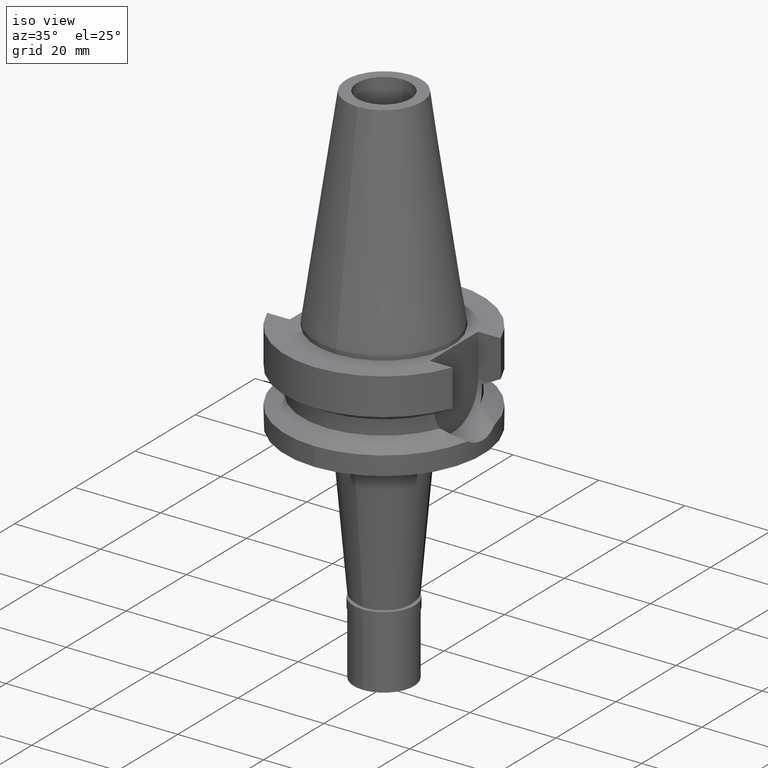
[diagram: clean part render]
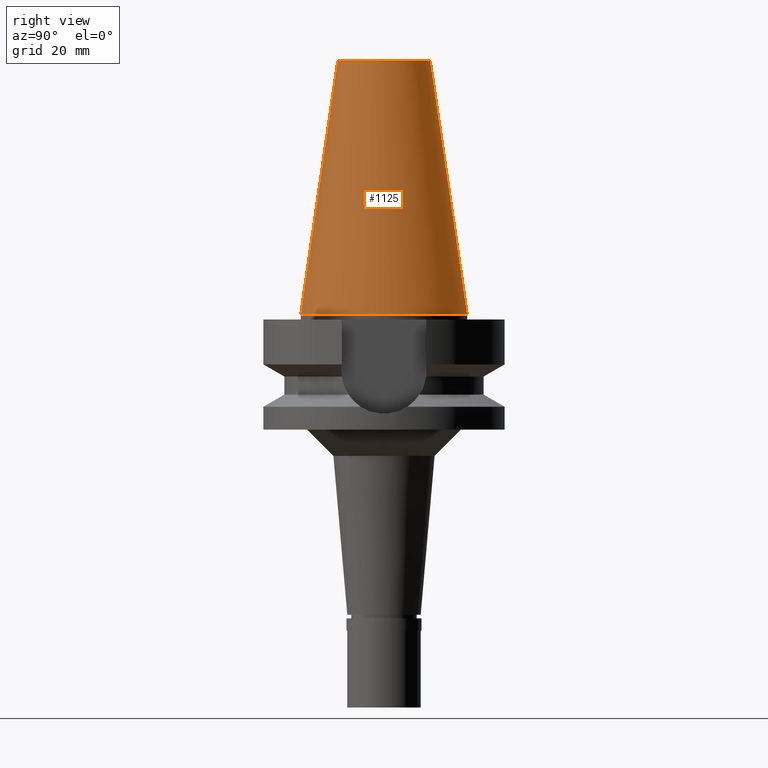
[diagram: tour spotlight — one face highlighted and labeled with its STEP entity id]
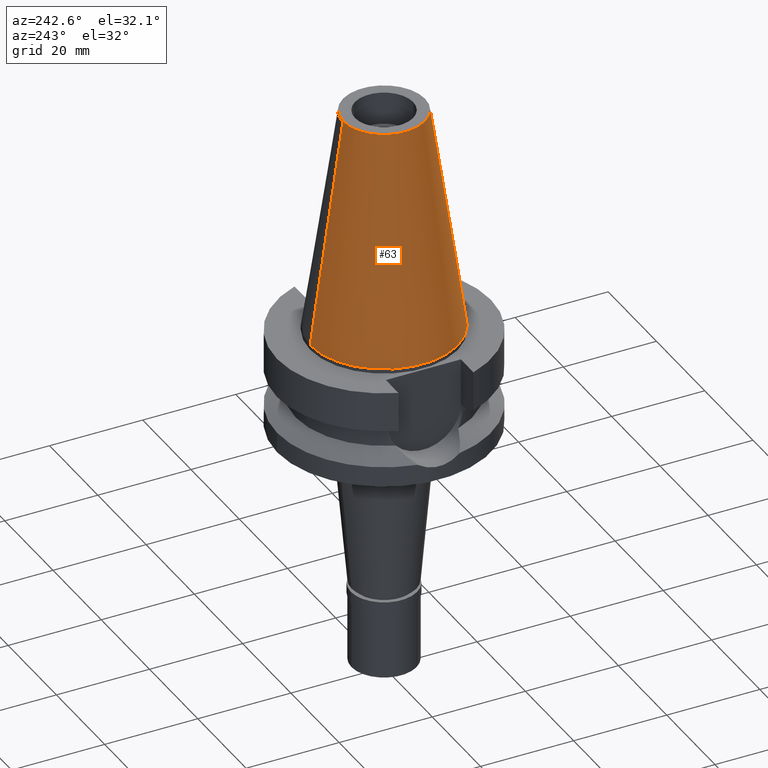
[diagram: tour spotlight — one face highlighted and labeled with its STEP entity id]
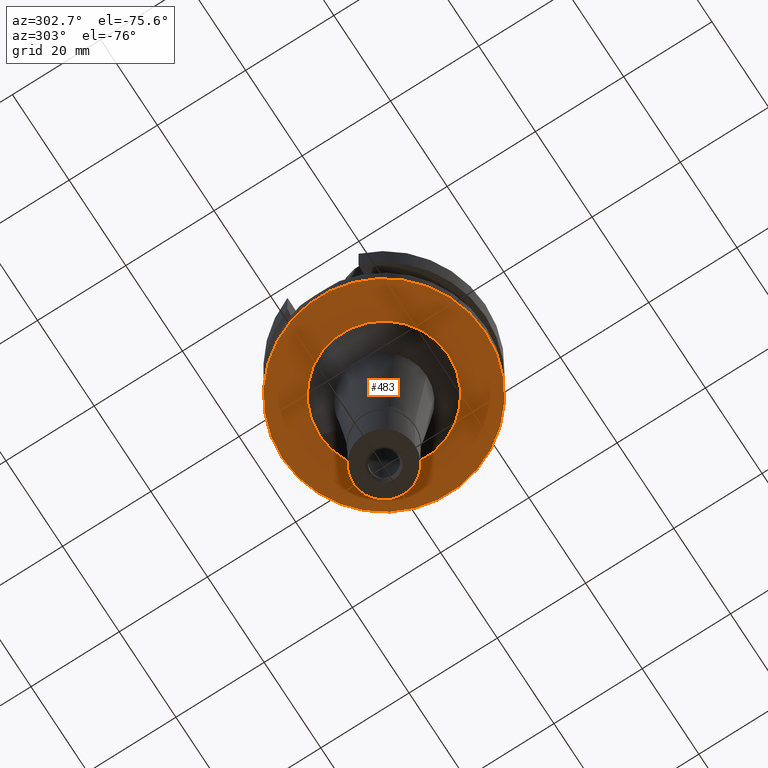
[diagram: tour spotlight — one face highlighted and labeled with its STEP entity id]
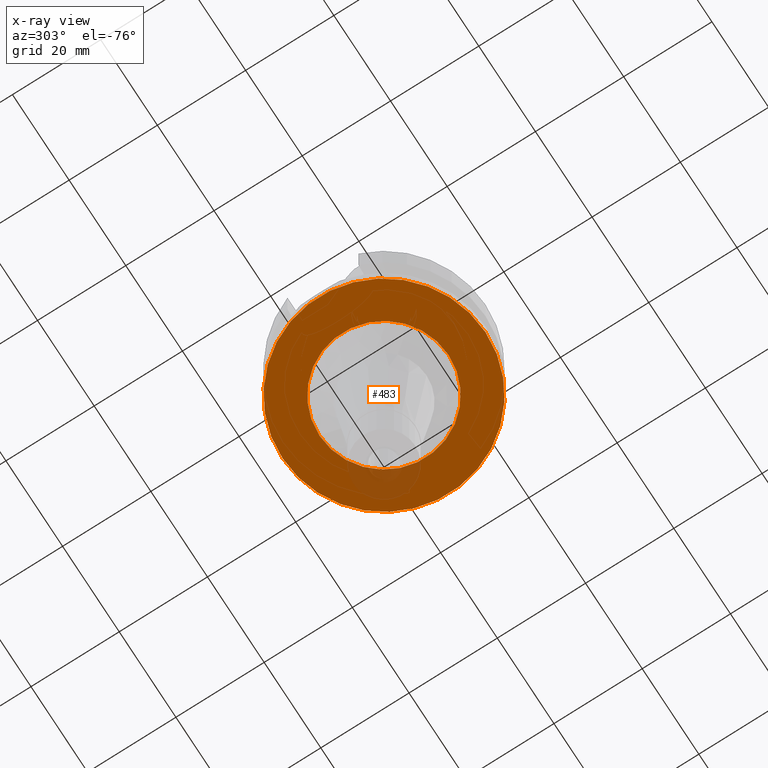
[diagram: x-ray of the same camera — body ghosted, this tour face saturated]
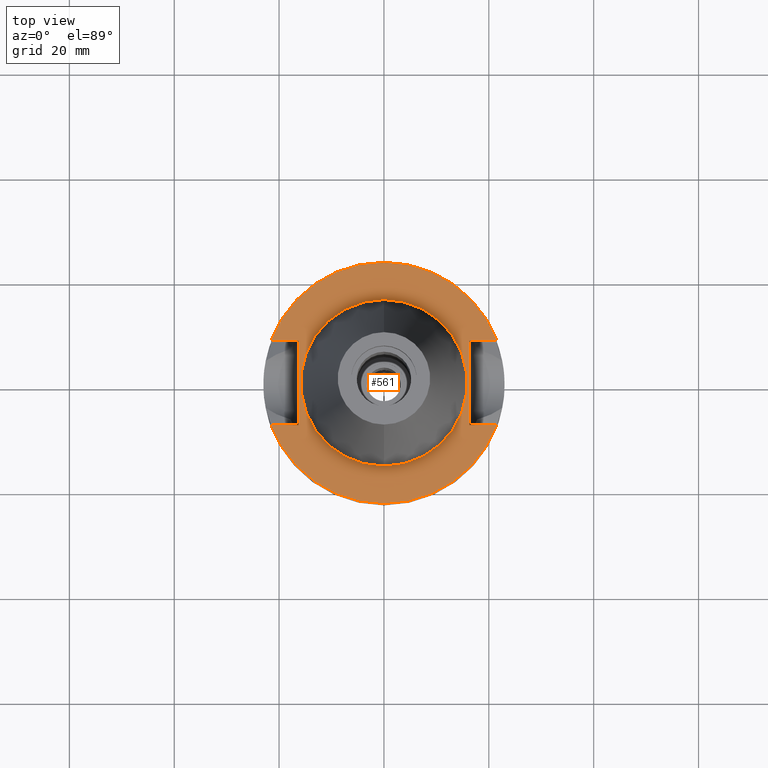
[diagram: tour spotlight — one face highlighted and labeled with its STEP entity id]
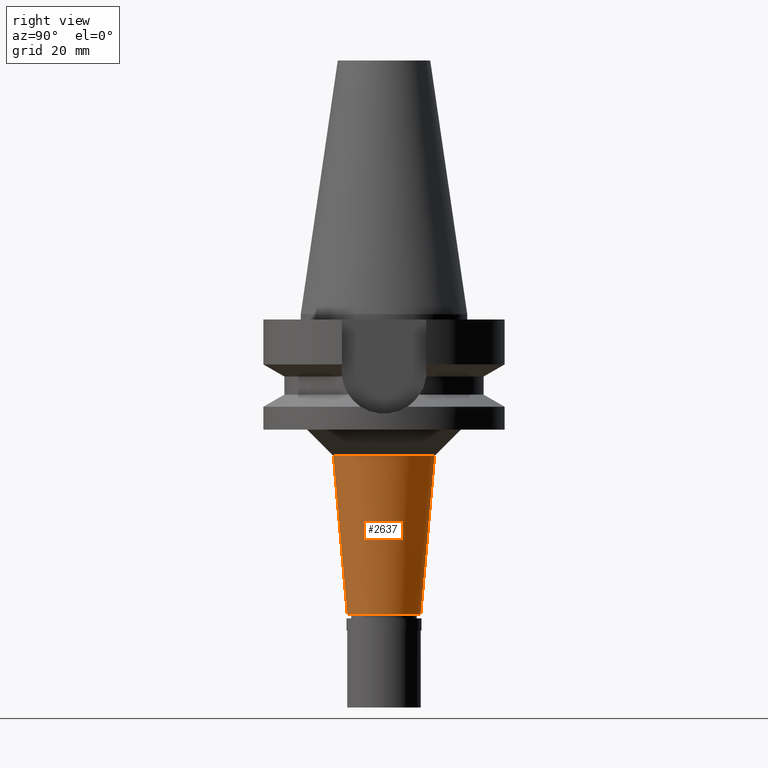
[diagram: tour spotlight — one face highlighted and labeled with its STEP entity id]
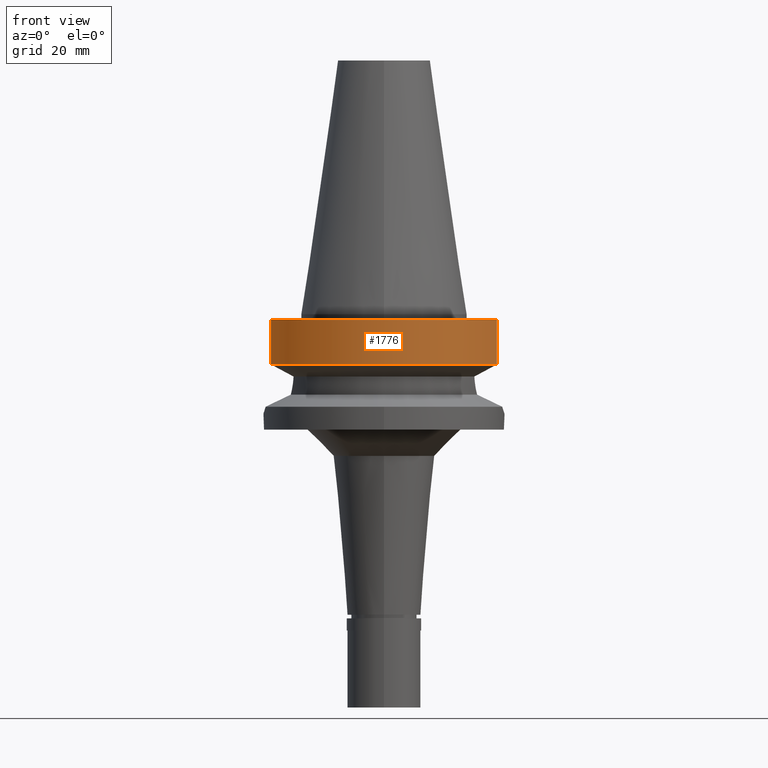
[diagram: tour spotlight — one face highlighted and labeled with its STEP entity id]
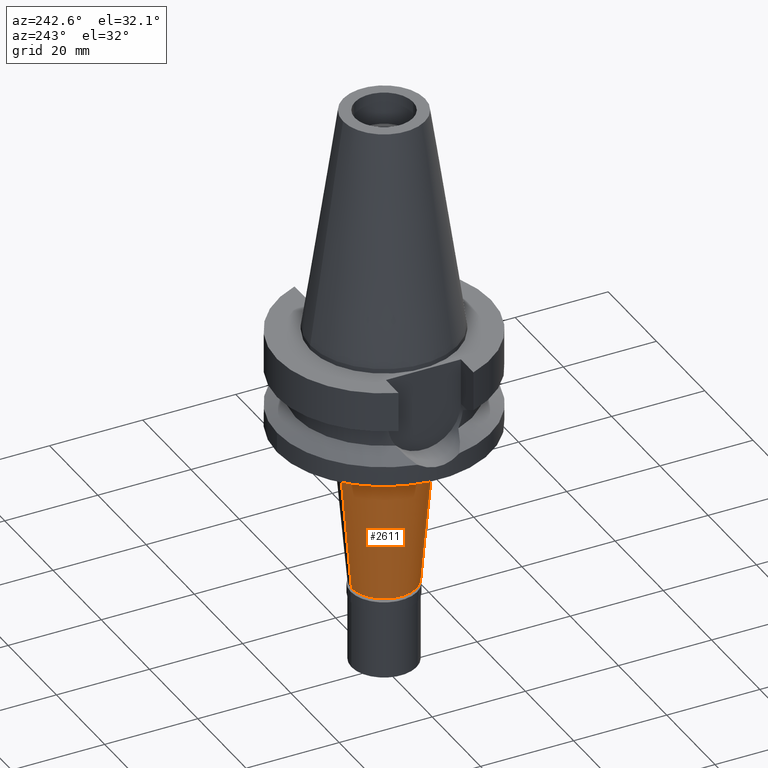
[diagram: tour spotlight — one face highlighted and labeled with its STEP entity id]
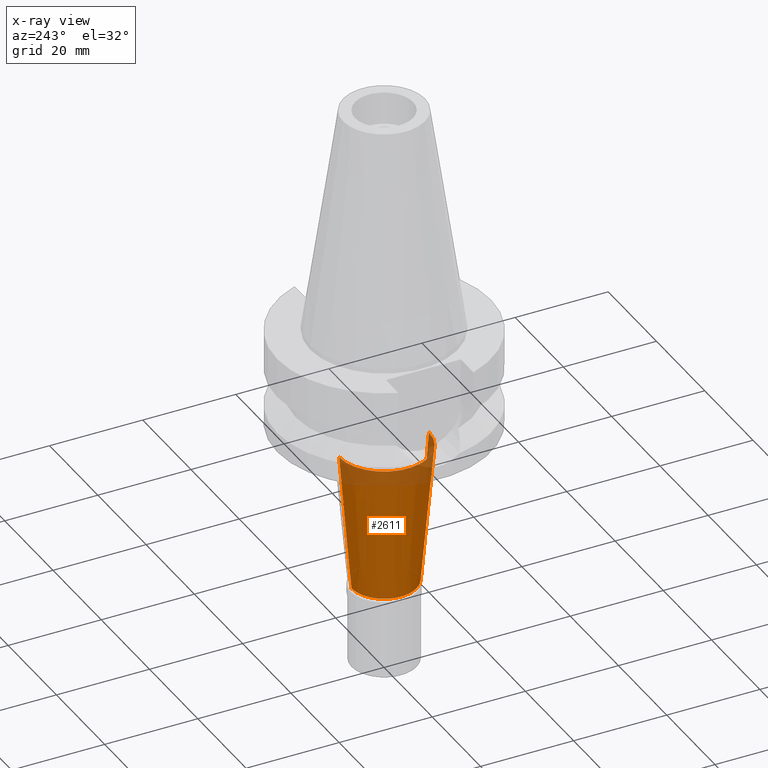
[diagram: x-ray of the same camera — body ghosted, this tour face saturated]
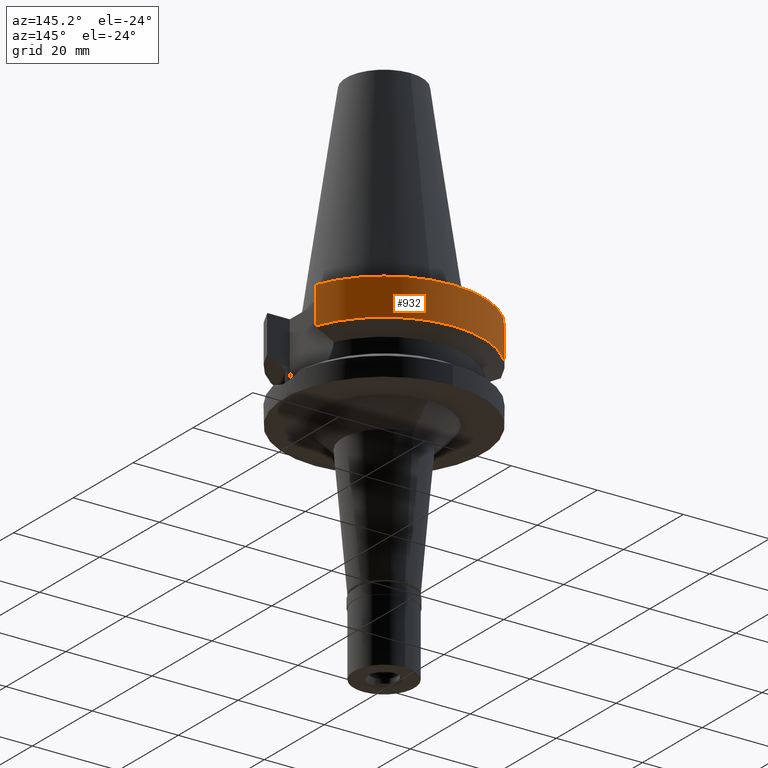
[diagram: tour spotlight — one face highlighted and labeled with its STEP entity id]
A machine part: a face-by-face anatomy tour. The part has 74 B-rep faces; the first image is the clean iso view, then the 8 largest visible faces are spotlighted one at a time (largest first), each with its STEP entity span.

Face 1 — right view, entity #1125. In plain terms, the highlighted conical surface has half-angle 8.297 deg.
Definition (entity closure, byte-faithful):
#152 = CARTESIAN_POINT ( 'NONE',  ( 0.0000000000000000000, 1.521011324540999938E-14, 48.39999999999999858 ) ) ;
#178 = AXIS2_PLACEMENT_3D ( 'NONE', #152, #419, #828 ) ;
#227 = EDGE_LOOP ( 'NONE', ( #533, #2521, #1038, #2292 ) ) ;
#302 = DIRECTION ( 'NONE',  ( 0.0000000000000000000, -0.1443043893539925626, -0.9895333461855498891 ) ) ;
#310 = EDGE_CURVE ( 'NONE', #1017, #2000, #962, .T. ) ;
#328 = DIRECTION ( 'NONE',  ( 0.0000000000000000000, 0.0000000000000000000, -1.000000000000000000 ) ) ;
#376 = VECTOR ( 'NONE', #1265, 1000.000000000000114 ) ;
#387 = VECTOR ( 'NONE', #302, 1000.000000000000114 ) ;
#419 = DIRECTION ( 'NONE',  ( 0.0000000000000000000, 0.0000000000000000000, -1.000000000000000000 ) ) ;
#467 = VERTEX_POINT ( 'NONE', #2934 ) ;
#479 = LINE ( 'NONE', #2092, #387 ) ;
#533 = ORIENTED_EDGE ( 'NONE', *, *, #1944, .T. ) ;
#807 = LINE ( 'NONE', #2623, #376 ) ;
#819 = CARTESIAN_POINT ( 'NONE',  ( 0.0000000000000000000, 1.521011324540999938E-14, -3.694822225953000089E-13 ) ) ;
#828 = DIRECTION ( 'NONE',  ( 0.0000000000000000000, 1.000000000000000000, 0.0000000000000000000 ) ) ;
#962 = CIRCLE ( 'NONE', #1948, 15.87500000000000000 ) ;
#1017 = VERTEX_POINT ( 'NONE', #2283 ) ;
#1038 = ORIENTED_EDGE ( 'NONE', *, *, #310, .F. ) ;
#1041 = CARTESIAN_POINT ( 'NONE',  ( 0.0000000000000000000, -15.87500000000000000, -1.598721155459999993E-13 ) ) ;
#1046 = CONICAL_SURFACE ( 'NONE', #2721, 12.34589586639000025, 0.1448099680379422438 ) ;
#1125 = ADVANCED_FACE ( 'NONE', ( #1498 ), #1046, .T. ) ;
#1265 = DIRECTION ( 'NONE',  ( 0.0000000000000000000, 0.1443043893539925626, -0.9895333461855498891 ) ) ;
#1273 = CIRCLE ( 'NONE', #178, 8.816791732783000768 ) ;
#1442 = CARTESIAN_POINT ( 'NONE',  ( 0.0000000000000000000, -8.816791732783000768, 48.39999999999999858 ) ) ;
#1498 = FACE_OUTER_BOUND ( 'NONE', #227, .T. ) ;
#1648 = EDGE_CURVE ( 'NONE', #467, #1017, #807, .T. ) ;
#1706 = DIRECTION ( 'NONE',  ( 0.0000000000000000000, 0.0000000000000000000, -1.000000000000000000 ) ) ;
#1744 = VERTEX_POINT ( 'NONE', #1442 ) ;
#1944 = EDGE_CURVE ( 'NONE', #467, #1744, #1273, .T. ) ;
#1948 = AXIS2_PLACEMENT_3D ( 'NONE', #819, #1706, #2505 ) ;
#1973 = CARTESIAN_POINT ( 'NONE',  ( 0.0000000000000000000, 1.521011324540999938E-14, 24.19999999999999929 ) ) ;
#2000 = VERTEX_POINT ( 'NONE', #1041 ) ;
#2092 = CARTESIAN_POINT ( 'NONE',  ( 0.0000000000000000000, -8.816791732783000768, 48.39999999999999858 ) ) ;
#2283 = CARTESIAN_POINT ( 'NONE',  ( 0.0000000000000000000, 15.87500000000000000, -1.598721155459999993E-13 ) ) ;
#2292 = ORIENTED_EDGE ( 'NONE', *, *, #1648, .F. ) ;
#2505 = DIRECTION ( 'NONE',  ( 0.0000000000000000000, 1.000000000000000000, 0.0000000000000000000 ) ) ;
#2521 = ORIENTED_EDGE ( 'NONE', *, *, #2781, .T. ) ;
#2623 = CARTESIAN_POINT ( 'NONE',  ( 0.0000000000000000000, 8.816791732783000768, 48.39999999999999858 ) ) ;
#2655 = DIRECTION ( 'NONE',  ( 0.0000000000000000000, -1.000000000000000000, 0.0000000000000000000 ) ) ;
#2721 = AXIS2_PLACEMENT_3D ( 'NONE', #1973, #328, #2655 ) ;
#2781 = EDGE_CURVE ( 'NONE', #1744, #2000, #479, .T. ) ;
#2934 = CARTESIAN_POINT ( 'NONE',  ( 0.0000000000000000000, 8.816791732783000768, 48.39999999999999858 ) ) ;

Face 2 — auxiliary view, entity #63. In plain terms, the highlighted conical surface has half-angle 8.297 deg.
Definition (entity closure, byte-faithful):
#26 = CARTESIAN_POINT ( 'NONE',  ( 0.0000000000000000000, 1.521011324540999938E-14, 24.19999999999999929 ) ) ;
#63 = ADVANCED_FACE ( 'NONE', ( #1616 ), #1352, .T. ) ;
#105 = CIRCLE ( 'NONE', #874, 8.816791732783000768 ) ;
#146 = EDGE_LOOP ( 'NONE', ( #867, #2079, #1000, #1801 ) ) ;
#302 = DIRECTION ( 'NONE',  ( 0.0000000000000000000, -0.1443043893539925626, -0.9895333461855498891 ) ) ;
#376 = VECTOR ( 'NONE', #1265, 1000.000000000000114 ) ;
#387 = VECTOR ( 'NONE', #302, 1000.000000000000114 ) ;
#467 = VERTEX_POINT ( 'NONE', #2934 ) ;
#479 = LINE ( 'NONE', #2092, #387 ) ;
#657 = AXIS2_PLACEMENT_3D ( 'NONE', #26, #746, #2598 ) ;
#746 = DIRECTION ( 'NONE',  ( 0.0000000000000000000, 0.0000000000000000000, -1.000000000000000000 ) ) ;
#749 = CARTESIAN_POINT ( 'NONE',  ( 0.0000000000000000000, 1.521011324540999938E-14, -3.694822225953000089E-13 ) ) ;
#807 = LINE ( 'NONE', #2623, #376 ) ;
#867 = ORIENTED_EDGE ( 'NONE', *, *, #1700, .F. ) ;
#874 = AXIS2_PLACEMENT_3D ( 'NONE', #2107, #1440, #2080 ) ;
#1000 = ORIENTED_EDGE ( 'NONE', *, *, #1551, .T. ) ;
#1017 = VERTEX_POINT ( 'NONE', #2283 ) ;
#1041 = CARTESIAN_POINT ( 'NONE',  ( 0.0000000000000000000, -15.87500000000000000, -1.598721155459999993E-13 ) ) ;
#1237 = DIRECTION ( 'NONE',  ( 0.0000000000000000000, -1.000000000000000000, 0.0000000000000000000 ) ) ;
#1265 = DIRECTION ( 'NONE',  ( 0.0000000000000000000, 0.1443043893539925626, -0.9895333461855498891 ) ) ;
#1352 = CONICAL_SURFACE ( 'NONE', #657, 12.34589586639000025, 0.1448099680379422438 ) ;
#1440 = DIRECTION ( 'NONE',  ( 0.0000000000000000000, 0.0000000000000000000, -1.000000000000000000 ) ) ;
#1442 = CARTESIAN_POINT ( 'NONE',  ( 0.0000000000000000000, -8.816791732783000768, 48.39999999999999858 ) ) ;
#1551 = EDGE_CURVE ( 'NONE', #1744, #467, #105, .T. ) ;
#1616 = FACE_OUTER_BOUND ( 'NONE', #146, .T. ) ;
#1648 = EDGE_CURVE ( 'NONE', #467, #1017, #807, .T. ) ;
#1700 = EDGE_CURVE ( 'NONE', #2000, #1017, #2269, .T. ) ;
#1744 = VERTEX_POINT ( 'NONE', #1442 ) ;
#1801 = ORIENTED_EDGE ( 'NONE', *, *, #1648, .T. ) ;
#1870 = DIRECTION ( 'NONE',  ( 0.0000000000000000000, 0.0000000000000000000, -1.000000000000000000 ) ) ;
#2000 = VERTEX_POINT ( 'NONE', #1041 ) ;
#2079 = ORIENTED_EDGE ( 'NONE', *, *, #2781, .F. ) ;
#2080 = DIRECTION ( 'NONE',  ( 0.0000000000000000000, -1.000000000000000000, 0.0000000000000000000 ) ) ;
#2092 = CARTESIAN_POINT ( 'NONE',  ( 0.0000000000000000000, -8.816791732783000768, 48.39999999999999858 ) ) ;
#2107 = CARTESIAN_POINT ( 'NONE',  ( 0.0000000000000000000, 1.521011324540999938E-14, 48.39999999999999858 ) ) ;
#2269 = CIRCLE ( 'NONE', #2656, 15.87500000000000000 ) ;
#2283 = CARTESIAN_POINT ( 'NONE',  ( 0.0000000000000000000, 15.87500000000000000, -1.598721155459999993E-13 ) ) ;
#2598 = DIRECTION ( 'NONE',  ( 0.0000000000000000000, -1.000000000000000000, 0.0000000000000000000 ) ) ;
#2623 = CARTESIAN_POINT ( 'NONE',  ( 0.0000000000000000000, 8.816791732783000768, 48.39999999999999858 ) ) ;
#2656 = AXIS2_PLACEMENT_3D ( 'NONE', #749, #1870, #1237 ) ;
#2781 = EDGE_CURVE ( 'NONE', #1744, #2000, #479, .T. ) ;
#2934 = CARTESIAN_POINT ( 'NONE',  ( 0.0000000000000000000, 8.816791732783000768, 48.39999999999999858 ) ) ;

Face 3 — auxiliary view, entity #483. An x-ray twin of the same camera follows (body ghosted, this face saturated) — the face is partly hidden behind the body. In plain terms, the highlighted planar face has unit normal (0, 0, -1).
Definition (entity closure, byte-faithful):
#234 = AXIS2_PLACEMENT_3D ( 'NONE', #850, #2259, #2474 ) ;
#276 = CARTESIAN_POINT ( 'NONE',  ( 0.0000000000000000000, 23.00000000000000000, -22.00000000000000000 ) ) ;
#424 = EDGE_CURVE ( 'NONE', #2414, #2358, #2777, .T. ) ;
#425 = CARTESIAN_POINT ( 'NONE',  ( 0.0000000000000000000, 0.0000000000000000000, -22.00000000000000000 ) ) ;
#462 = DIRECTION ( 'NONE',  ( 0.0000000000000000000, 0.0000000000000000000, 1.000000000000000000 ) ) ;
#483 = ADVANCED_FACE ( 'NONE', ( #861, #1750 ), #1538, .T. ) ;
#509 = DIRECTION ( 'NONE',  ( 0.0000000000000000000, 0.0000000000000000000, -1.000000000000000000 ) ) ;
#513 = AXIS2_PLACEMENT_3D ( 'NONE', #2492, #462, #1812 ) ;
#592 = EDGE_CURVE ( 'NONE', #1137, #1109, #2780, .T. ) ;
#659 = ORIENTED_EDGE ( 'NONE', *, *, #2816, .F. ) ;
#699 = DIRECTION ( 'NONE',  ( 0.0000000000000000000, 0.0000000000000000000, 1.000000000000000000 ) ) ;
#742 = CARTESIAN_POINT ( 'NONE',  ( 0.0000000000000000000, 0.0000000000000000000, -22.00000000000000000 ) ) ;
#756 = EDGE_LOOP ( 'NONE', ( #659, #1580 ) ) ;
#764 = DIRECTION ( 'NONE',  ( 0.0000000000000000000, 1.000000000000000000, 0.0000000000000000000 ) ) ;
#773 = CARTESIAN_POINT ( 'NONE',  ( 0.0000000000000000000, -23.00000000000000000, -22.00000000000000000 ) ) ;
#850 = CARTESIAN_POINT ( 'NONE',  ( 0.0000000000000000000, 0.0000000000000000000, -22.00000000000000000 ) ) ;
#861 = FACE_OUTER_BOUND ( 'NONE', #756, .T. ) ;
#1087 = CIRCLE ( 'NONE', #234, 14.65090650484000001 ) ;
#1109 = VERTEX_POINT ( 'NONE', #2315 ) ;
#1137 = VERTEX_POINT ( 'NONE', #2461 ) ;
#1172 = DIRECTION ( 'NONE',  ( 0.0000000000000000000, 1.000000000000000000, 0.0000000000000000000 ) ) ;
#1226 = ORIENTED_EDGE ( 'NONE', *, *, #592, .F. ) ;
#1319 = DIRECTION ( 'NONE',  ( 0.0000000000000000000, 0.0000000000000000000, -1.000000000000000000 ) ) ;
#1486 = AXIS2_PLACEMENT_3D ( 'NONE', #742, #509, #764 ) ;
#1538 = PLANE ( 'NONE',  #2197 ) ;
#1580 = ORIENTED_EDGE ( 'NONE', *, *, #424, .F. ) ;
#1750 = FACE_BOUND ( 'NONE', #2644, .T. ) ;
#1812 = DIRECTION ( 'NONE',  ( 0.0000000000000000000, -1.000000000000000000, 0.0000000000000000000 ) ) ;
#1960 = ORIENTED_EDGE ( 'NONE', *, *, #2670, .F. ) ;
#1992 = CIRCLE ( 'NONE', #2043, 23.00000000000000000 ) ;
#2043 = AXIS2_PLACEMENT_3D ( 'NONE', #2069, #699, #1172 ) ;
#2069 = CARTESIAN_POINT ( 'NONE',  ( 0.0000000000000000000, 1.890487263844000250E-14, -22.00000000000000000 ) ) ;
#2197 = AXIS2_PLACEMENT_3D ( 'NONE', #425, #1319, #2225 ) ;
#2225 = DIRECTION ( 'NONE',  ( 0.0000000000000000000, -1.000000000000000000, 0.0000000000000000000 ) ) ;
#2259 = DIRECTION ( 'NONE',  ( 0.0000000000000000000, 0.0000000000000000000, -1.000000000000000000 ) ) ;
#2315 = CARTESIAN_POINT ( 'NONE',  ( 0.0000000000000000000, -14.65090650484000001, -22.00000000000000000 ) ) ;
#2358 = VERTEX_POINT ( 'NONE', #276 ) ;
#2414 = VERTEX_POINT ( 'NONE', #773 ) ;
#2461 = CARTESIAN_POINT ( 'NONE',  ( 0.0000000000000000000, 14.65090650484000001, -22.00000000000000000 ) ) ;
#2474 = DIRECTION ( 'NONE',  ( 0.0000000000000000000, -1.000000000000000000, 0.0000000000000000000 ) ) ;
#2492 = CARTESIAN_POINT ( 'NONE',  ( 0.0000000000000000000, 1.890487263844000250E-14, -22.00000000000000000 ) ) ;
#2644 = EDGE_LOOP ( 'NONE', ( #1226, #1960 ) ) ;
#2670 = EDGE_CURVE ( 'NONE', #1109, #1137, #1087, .T. ) ;
#2777 = CIRCLE ( 'NONE', #513, 23.00000000000000000 ) ;
#2780 = CIRCLE ( 'NONE', #1486, 14.65090650484000001 ) ;
#2816 = EDGE_CURVE ( 'NONE', #2358, #2414, #1992, .T. ) ;

Face 4 — top view, entity #561. In plain terms, the highlighted planar face has unit normal (0, 0, -1).
Definition (entity closure, byte-faithful):
#107 = CARTESIAN_POINT ( 'NONE',  ( -16.29999999999999716, 8.050000000000000711, -1.000000000000000000 ) ) ;
#170 = DIRECTION ( 'NONE',  ( -1.000000000000000000, -9.313164748262000573E-14, 0.0000000000000000000 ) ) ;
#179 = EDGE_CURVE ( 'NONE', #2179, #2199, #2341, .T. ) ;
#197 = CIRCLE ( 'NONE', #2586, 23.00000000000000000 ) ;
#281 = CIRCLE ( 'NONE', #1179, 15.87500000000000000 ) ;
#290 = EDGE_CURVE ( 'NONE', #876, #2413, #2379, .T. ) ;
#349 = DIRECTION ( 'NONE',  ( 0.0000000000000000000, 1.000000000000000000, 0.0000000000000000000 ) ) ;
#365 = EDGE_CURVE ( 'NONE', #2591, #1863, #2030, .T. ) ;
#401 = EDGE_CURVE ( 'NONE', #876, #1154, #2694, .T. ) ;
#414 = EDGE_CURVE ( 'NONE', #1256, #2169, #461, .T. ) ;
#426 = DIRECTION ( 'NONE',  ( 1.000000000000000000, -9.347030801892000173E-14, 0.0000000000000000000 ) ) ;
#461 = CIRCLE ( 'NONE', #745, 15.87500000000000000 ) ;
#507 = DIRECTION ( 'NONE',  ( 0.0000000000000000000, -1.000000000000000000, 0.0000000000000000000 ) ) ;
#515 = DIRECTION ( 'NONE',  ( -1.000000000000000000, 9.347030801892000173E-14, 0.0000000000000000000 ) ) ;
#537 = FACE_BOUND ( 'NONE', #2938, .T. ) ;
#561 = ADVANCED_FACE ( 'NONE', ( #1878, #537 ), #2755, .F. ) ;
#601 = VECTOR ( 'NONE', #349, 1000.000000000000000 ) ;
#667 = CARTESIAN_POINT ( 'NONE',  ( 16.29999999999999716, 8.050000000000000711, -1.000000000000000000 ) ) ;
#673 = ORIENTED_EDGE ( 'NONE', *, *, #1011, .F. ) ;
#693 = ORIENTED_EDGE ( 'NONE', *, *, #290, .F. ) ;
#694 = VECTOR ( 'NONE', #1482, 1000.000000000000000 ) ;
#705 = ORIENTED_EDGE ( 'NONE', *, *, #365, .F. ) ;
#745 = AXIS2_PLACEMENT_3D ( 'NONE', #2680, #2948, #1585 ) ;
#798 = DIRECTION ( 'NONE',  ( 0.0000000000000000000, -1.000000000000000000, 0.0000000000000000000 ) ) ;
#876 = VERTEX_POINT ( 'NONE', #1520 ) ;
#880 = LINE ( 'NONE', #1099, #2166 ) ;
#987 = CARTESIAN_POINT ( 'NONE',  ( 0.0000000000000000000, 1.212400331155999925E-14, -1.000000000000000000 ) ) ;
#1011 = EDGE_CURVE ( 'NONE', #1127, #1154, #197, .T. ) ;
#1055 = CARTESIAN_POINT ( 'NONE',  ( -21.54524309446999908, -8.050000000000000711, -1.000000000000000000 ) ) ;
#1099 = CARTESIAN_POINT ( 'NONE',  ( 16.29999999999999716, -8.050000000000000711, -1.000000000000000000 ) ) ;
#1105 = VECTOR ( 'NONE', #515, 1000.000000000000000 ) ;
#1126 = CARTESIAN_POINT ( 'NONE',  ( 0.0000000000000000000, -15.87500000000000000, -0.9999999999999000799 ) ) ;
#1127 = VERTEX_POINT ( 'NONE', #1327 ) ;
#1154 = VERTEX_POINT ( 'NONE', #1055 ) ;
#1179 = AXIS2_PLACEMENT_3D ( 'NONE', #2805, #2355, #798 ) ;
#1201 = ORIENTED_EDGE ( 'NONE', *, *, #1665, .F. ) ;
#1256 = VERTEX_POINT ( 'NONE', #1908 ) ;
#1293 = CARTESIAN_POINT ( 'NONE',  ( 0.0000000000000000000, 1.890487263844000250E-14, -0.9999999999999000799 ) ) ;
#1327 = CARTESIAN_POINT ( 'NONE',  ( 21.54524309446999908, -8.050000000000000711, -1.000000000000000000 ) ) ;
#1342 = EDGE_CURVE ( 'NONE', #2413, #2179, #1572, .T. ) ;
#1420 = DIRECTION ( 'NONE',  ( 0.0000000000000000000, 0.0000000000000000000, -1.000000000000000000 ) ) ;
#1450 = EDGE_LOOP ( 'NONE', ( #2260, #673, #1201, #705, #2062, #2124, #2741, #693 ) ) ;
#1482 = DIRECTION ( 'NONE',  ( 1.000000000000000000, 9.380896855521999773E-14, 0.0000000000000000000 ) ) ;
#1507 = CARTESIAN_POINT ( 'NONE',  ( 16.29999999999999716, 8.050000000000000711, -1.000000000000000000 ) ) ;
#1520 = CARTESIAN_POINT ( 'NONE',  ( -16.29999999999999716, -8.050000000000000711, -1.000000000000000000 ) ) ;
#1525 = CARTESIAN_POINT ( 'NONE',  ( -16.29999999999999716, -8.050000000000000711, -1.000000000000000000 ) ) ;
#1572 = LINE ( 'NONE', #2275, #1105 ) ;
#1585 = DIRECTION ( 'NONE',  ( 0.0000000000000000000, 1.000000000000000000, 0.0000000000000000000 ) ) ;
#1595 = EDGE_CURVE ( 'NONE', #2591, #2199, #2424, .T. ) ;
#1596 = CARTESIAN_POINT ( 'NONE',  ( 0.0000000000000000000, 1.890487263844000250E-14, -0.9999999999999000799 ) ) ;
#1622 = CARTESIAN_POINT ( 'NONE',  ( 21.54524309446999908, 8.050000000000000711, -0.9999999999999000799 ) ) ;
#1625 = AXIS2_PLACEMENT_3D ( 'NONE', #987, #1420, #2552 ) ;
#1649 = CARTESIAN_POINT ( 'NONE',  ( 16.29999999999999716, -8.050000000000000711, -1.000000000000000000 ) ) ;
#1665 = EDGE_CURVE ( 'NONE', #1863, #1127, #880, .T. ) ;
#1692 = DIRECTION ( 'NONE',  ( 0.0000000000000000000, 0.0000000000000000000, -1.000000000000000000 ) ) ;
#1709 = ORIENTED_EDGE ( 'NONE', *, *, #414, .F. ) ;
#1755 = VECTOR ( 'NONE', #170, 1000.000000000000000 ) ;
#1760 = EDGE_CURVE ( 'NONE', #2169, #1256, #281, .T. ) ;
#1766 = DIRECTION ( 'NONE',  ( 0.0000000000000000000, -1.000000000000000000, 0.0000000000000000000 ) ) ;
#1806 = VECTOR ( 'NONE', #1766, 1000.000000000000000 ) ;
#1810 = DIRECTION ( 'NONE',  ( 0.0000000000000000000, 0.0000000000000000000, -1.000000000000000000 ) ) ;
#1863 = VERTEX_POINT ( 'NONE', #1649 ) ;
#1878 = FACE_OUTER_BOUND ( 'NONE', #1450, .T. ) ;
#1908 = CARTESIAN_POINT ( 'NONE',  ( 0.0000000000000000000, 15.87500000000000000, -0.9999999999999000799 ) ) ;
#2030 = LINE ( 'NONE', #667, #1806 ) ;
#2062 = ORIENTED_EDGE ( 'NONE', *, *, #1595, .T. ) ;
#2124 = ORIENTED_EDGE ( 'NONE', *, *, #179, .F. ) ;
#2166 = VECTOR ( 'NONE', #426, 1000.000000000000000 ) ;
#2169 = VERTEX_POINT ( 'NONE', #1126 ) ;
#2179 = VERTEX_POINT ( 'NONE', #2512 ) ;
#2199 = VERTEX_POINT ( 'NONE', #1622 ) ;
#2211 = CARTESIAN_POINT ( 'NONE',  ( -16.29999999999999716, -8.050000000000000711, -1.000000000000000000 ) ) ;
#2246 = CARTESIAN_POINT ( 'NONE',  ( 16.29999999999999716, 8.050000000000000711, -1.000000000000000000 ) ) ;
#2260 = ORIENTED_EDGE ( 'NONE', *, *, #401, .T. ) ;
#2275 = CARTESIAN_POINT ( 'NONE',  ( -16.29999999999999716, 8.050000000000000711, -1.000000000000000000 ) ) ;
#2341 = CIRCLE ( 'NONE', #2724, 23.00000000000000000 ) ;
#2355 = DIRECTION ( 'NONE',  ( 0.0000000000000000000, 0.0000000000000000000, 1.000000000000000000 ) ) ;
#2379 = LINE ( 'NONE', #1525, #601 ) ;
#2413 = VERTEX_POINT ( 'NONE', #107 ) ;
#2424 = LINE ( 'NONE', #1507, #694 ) ;
#2512 = CARTESIAN_POINT ( 'NONE',  ( -21.54524309446999908, 8.050000000000000711, -1.000000000000000000 ) ) ;
#2552 = DIRECTION ( 'NONE',  ( 0.0000000000000000000, -1.000000000000000000, 0.0000000000000000000 ) ) ;
#2586 = AXIS2_PLACEMENT_3D ( 'NONE', #1596, #1810, #507 ) ;
#2591 = VERTEX_POINT ( 'NONE', #2246 ) ;
#2680 = CARTESIAN_POINT ( 'NONE',  ( 0.0000000000000000000, 1.890487263844000250E-14, -0.9999999999999000799 ) ) ;
#2694 = LINE ( 'NONE', #2211, #1755 ) ;
#2724 = AXIS2_PLACEMENT_3D ( 'NONE', #1293, #1692, #2884 ) ;
#2731 = ORIENTED_EDGE ( 'NONE', *, *, #1760, .F. ) ;
#2741 = ORIENTED_EDGE ( 'NONE', *, *, #1342, .F. ) ;
#2755 = PLANE ( 'NONE',  #1625 ) ;
#2805 = CARTESIAN_POINT ( 'NONE',  ( 0.0000000000000000000, 1.890487263844000250E-14, -0.9999999999999000799 ) ) ;
#2884 = DIRECTION ( 'NONE',  ( 0.0000000000000000000, 1.000000000000000000, 0.0000000000000000000 ) ) ;
#2938 = EDGE_LOOP ( 'NONE', ( #1709, #2731 ) ) ;
#2948 = DIRECTION ( 'NONE',  ( 0.0000000000000000000, 0.0000000000000000000, 1.000000000000000000 ) ) ;

Face 5 — right view, entity #2637. In plain terms, the highlighted conical surface has half-angle 5 deg.
Definition (entity closure, byte-faithful):
#35 = CARTESIAN_POINT ( 'NONE',  ( 0.0000000000000000000, 0.0000000000000000000, -57.29999999999999716 ) ) ;
#94 = AXIS2_PLACEMENT_3D ( 'NONE', #35, #252, #493 ) ;
#113 = CARTESIAN_POINT ( 'NONE',  ( 0.0000000000000000000, -9.650906504837001521, -27.00000000000000000 ) ) ;
#125 = DIRECTION ( 'NONE',  ( 0.0000000000000000000, -0.08715574274770356011, -0.9961946980917415484 ) ) ;
#130 = EDGE_CURVE ( 'NONE', #1174, #1716, #159, .T. ) ;
#159 = LINE ( 'NONE', #113, #2783 ) ;
#220 = EDGE_CURVE ( 'NONE', #1499, #1779, #2422, .T. ) ;
#252 = DIRECTION ( 'NONE',  ( 0.0000000000000000000, 0.0000000000000000000, 1.000000000000000000 ) ) ;
#417 = CARTESIAN_POINT ( 'NONE',  ( 0.0000000000000000000, -9.650906504837001521, -27.00000000000000000 ) ) ;
#491 = DIRECTION ( 'NONE',  ( 0.0000000000000000000, -1.000000000000000000, 0.0000000000000000000 ) ) ;
#493 = DIRECTION ( 'NONE',  ( 0.0000000000000000000, -1.000000000000000000, 0.0000000000000000000 ) ) ;
#531 = CARTESIAN_POINT ( 'NONE',  ( 0.0000000000000000000, -7.000000000000000000, -57.29999999999999716 ) ) ;
#583 = DIRECTION ( 'NONE',  ( 0.0000000000000000000, 0.08715574274770356011, -0.9961946980917415484 ) ) ;
#624 = EDGE_CURVE ( 'NONE', #1174, #1499, #787, .T. ) ;
#669 = FACE_OUTER_BOUND ( 'NONE', #1262, .T. ) ;
#679 = AXIS2_PLACEMENT_3D ( 'NONE', #1131, #2458, #1768 ) ;
#787 = CIRCLE ( 'NONE', #1583, 9.650906504835999655 ) ;
#872 = VECTOR ( 'NONE', #125, 1000.000000000000000 ) ;
#1069 = ORIENTED_EDGE ( 'NONE', *, *, #2749, .T. ) ;
#1131 = CARTESIAN_POINT ( 'NONE',  ( 0.0000000000000000000, 0.0000000000000000000, -42.14999999999999858 ) ) ;
#1174 = VERTEX_POINT ( 'NONE', #417 ) ;
#1202 = CARTESIAN_POINT ( 'NONE',  ( 0.0000000000000000000, 0.0000000000000000000, -27.00000000000000000 ) ) ;
#1262 = EDGE_LOOP ( 'NONE', ( #1356, #2625, #1069, #2101 ) ) ;
#1356 = ORIENTED_EDGE ( 'NONE', *, *, #624, .F. ) ;
#1499 = VERTEX_POINT ( 'NONE', #1866 ) ;
#1583 = AXIS2_PLACEMENT_3D ( 'NONE', #1202, #1653, #491 ) ;
#1653 = DIRECTION ( 'NONE',  ( 0.0000000000000000000, 0.0000000000000000000, 1.000000000000000000 ) ) ;
#1716 = VERTEX_POINT ( 'NONE', #531 ) ;
#1768 = DIRECTION ( 'NONE',  ( 0.0000000000000000000, 1.000000000000000000, 0.0000000000000000000 ) ) ;
#1779 = VERTEX_POINT ( 'NONE', #1853 ) ;
#1853 = CARTESIAN_POINT ( 'NONE',  ( 0.0000000000000000000, 7.000000000000000000, -57.29999999999999716 ) ) ;
#1866 = CARTESIAN_POINT ( 'NONE',  ( 0.0000000000000000000, 9.650906504837001521, -27.00000000000000000 ) ) ;
#2101 = ORIENTED_EDGE ( 'NONE', *, *, #220, .F. ) ;
#2422 = LINE ( 'NONE', #2622, #872 ) ;
#2428 = CIRCLE ( 'NONE', #94, 7.000000000000000000 ) ;
#2458 = DIRECTION ( 'NONE',  ( 0.0000000000000000000, 0.0000000000000000000, 1.000000000000000000 ) ) ;
#2575 = CONICAL_SURFACE ( 'NONE', #679, 8.325453252417998939, 0.08726646259969973729 ) ;
#2622 = CARTESIAN_POINT ( 'NONE',  ( 0.0000000000000000000, 9.650906504837001521, -27.00000000000000000 ) ) ;
#2625 = ORIENTED_EDGE ( 'NONE', *, *, #130, .T. ) ;
#2637 = ADVANCED_FACE ( 'NONE', ( #669 ), #2575, .T. ) ;
#2749 = EDGE_CURVE ( 'NONE', #1716, #1779, #2428, .T. ) ;
#2783 = VECTOR ( 'NONE', #583, 1000.000000000000000 ) ;

Face 6 — front view, entity #1776. In plain terms, the highlighted cylindrical surface (partial cylindrical patch) has radius 23 mm, axis along (0, 0, -1).
Definition (entity closure, byte-faithful):
#24 = DIRECTION ( 'NONE',  ( 0.0000000000000000000, 0.0000000000000000000, 1.000000000000000000 ) ) ;
#197 = CIRCLE ( 'NONE', #2586, 23.00000000000000000 ) ;
#253 = ORIENTED_EDGE ( 'NONE', *, *, #1011, .T. ) ;
#313 = VECTOR ( 'NONE', #1894, 1000.000000000000114 ) ;
#480 = VERTEX_POINT ( 'NONE', #1077 ) ;
#507 = DIRECTION ( 'NONE',  ( 0.0000000000000000000, -1.000000000000000000, 0.0000000000000000000 ) ) ;
#546 = CARTESIAN_POINT ( 'NONE',  ( -21.54524325238000060, -8.049999577366000025, -9.567211146628999074 ) ) ;
#644 = EDGE_CURVE ( 'NONE', #1127, #480, #2799, .T. ) ;
#944 = LINE ( 'NONE', #1418, #2001 ) ;
#949 = CARTESIAN_POINT ( 'NONE',  ( 0.0000000000000000000, 1.093341284896999988E-14, -9.567208369710998639 ) ) ;
#954 = FACE_OUTER_BOUND ( 'NONE', #1056, .T. ) ;
#1011 = EDGE_CURVE ( 'NONE', #1127, #1154, #197, .T. ) ;
#1055 = CARTESIAN_POINT ( 'NONE',  ( -21.54524309446999908, -8.050000000000000711, -1.000000000000000000 ) ) ;
#1056 = EDGE_LOOP ( 'NONE', ( #2794, #1197, #1684, #253 ) ) ;
#1077 = CARTESIAN_POINT ( 'NONE',  ( 21.54524309446999908, -8.050000000002000888, -9.567208369710998639 ) ) ;
#1092 = EDGE_CURVE ( 'NONE', #2478, #1154, #944, .T. ) ;
#1127 = VERTEX_POINT ( 'NONE', #1327 ) ;
#1154 = VERTEX_POINT ( 'NONE', #1055 ) ;
#1170 = CARTESIAN_POINT ( 'NONE',  ( 21.54524309446999908, -8.050000000000000711, -1.000000000000000000 ) ) ;
#1197 = ORIENTED_EDGE ( 'NONE', *, *, #2742, .T. ) ;
#1327 = CARTESIAN_POINT ( 'NONE',  ( 21.54524309446999908, -8.050000000000000711, -1.000000000000000000 ) ) ;
#1418 = CARTESIAN_POINT ( 'NONE',  ( -21.54524325238000060, -8.049999577366000025, -9.567211146628999074 ) ) ;
#1505 = AXIS2_PLACEMENT_3D ( 'NONE', #2544, #1884, #1903 ) ;
#1596 = CARTESIAN_POINT ( 'NONE',  ( 0.0000000000000000000, 1.890487263844000250E-14, -0.9999999999999000799 ) ) ;
#1684 = ORIENTED_EDGE ( 'NONE', *, *, #644, .F. ) ;
#1776 = ADVANCED_FACE ( 'NONE', ( #954 ), #2083, .T. ) ;
#1810 = DIRECTION ( 'NONE',  ( 0.0000000000000000000, 0.0000000000000000000, -1.000000000000000000 ) ) ;
#1884 = DIRECTION ( 'NONE',  ( 0.0000000000000000000, 0.0000000000000000000, -1.000000000000000000 ) ) ;
#1894 = DIRECTION ( 'NONE',  ( -9.134800745262689569E-08, -2.444862503416914398E-07, -0.9999999999999659162 ) ) ;
#1896 = AXIS2_PLACEMENT_3D ( 'NONE', #949, #24, #2519 ) ;
#1903 = DIRECTION ( 'NONE',  ( 0.0000000000000000000, -1.000000000000000000, 0.0000000000000000000 ) ) ;
#2001 = VECTOR ( 'NONE', #2302, 1000.000000000000114 ) ;
#2083 = CYLINDRICAL_SURFACE ( 'NONE', #1505, 23.00000000000000000 ) ;
#2302 = DIRECTION ( 'NONE',  ( 1.843191671230997693E-08, -4.933165888406983159E-08, 0.9999999999999985567 ) ) ;
#2478 = VERTEX_POINT ( 'NONE', #546 ) ;
#2519 = DIRECTION ( 'NONE',  ( 0.0000000000000000000, -1.000000000000000000, 0.0000000000000000000 ) ) ;
#2544 = CARTESIAN_POINT ( 'NONE',  ( 0.0000000000000000000, 1.890487263844000250E-14, 54.37000000000000455 ) ) ;
#2586 = AXIS2_PLACEMENT_3D ( 'NONE', #1596, #1810, #507 ) ;
#2667 = CIRCLE ( 'NONE', #1896, 23.00000000000000000 ) ;
#2742 = EDGE_CURVE ( 'NONE', #2478, #480, #2667, .T. ) ;
#2794 = ORIENTED_EDGE ( 'NONE', *, *, #1092, .F. ) ;
#2799 = LINE ( 'NONE', #1170, #313 ) ;

Face 7 — auxiliary view, entity #2611. An x-ray twin of the same camera follows (body ghosted, this face saturated) — the face is partly hidden behind the body. In plain terms, the highlighted conical surface has half-angle 5 deg.
Definition (entity closure, byte-faithful):
#113 = CARTESIAN_POINT ( 'NONE',  ( 0.0000000000000000000, -9.650906504837001521, -27.00000000000000000 ) ) ;
#125 = DIRECTION ( 'NONE',  ( 0.0000000000000000000, -0.08715574274770356011, -0.9961946980917415484 ) ) ;
#130 = EDGE_CURVE ( 'NONE', #1174, #1716, #159, .T. ) ;
#159 = LINE ( 'NONE', #113, #2783 ) ;
#199 = EDGE_LOOP ( 'NONE', ( #1971, #1155, #1489, #259 ) ) ;
#220 = EDGE_CURVE ( 'NONE', #1499, #1779, #2422, .T. ) ;
#246 = EDGE_CURVE ( 'NONE', #1174, #1499, #1249, .T. ) ;
#259 = ORIENTED_EDGE ( 'NONE', *, *, #220, .T. ) ;
#362 = DIRECTION ( 'NONE',  ( 0.0000000000000000000, 0.0000000000000000000, -1.000000000000000000 ) ) ;
#417 = CARTESIAN_POINT ( 'NONE',  ( 0.0000000000000000000, -9.650906504837001521, -27.00000000000000000 ) ) ;
#531 = CARTESIAN_POINT ( 'NONE',  ( 0.0000000000000000000, -7.000000000000000000, -57.29999999999999716 ) ) ;
#583 = DIRECTION ( 'NONE',  ( 0.0000000000000000000, 0.08715574274770356011, -0.9961946980917415484 ) ) ;
#596 = DIRECTION ( 'NONE',  ( 0.0000000000000000000, 0.0000000000000000000, 1.000000000000000000 ) ) ;
#740 = AXIS2_PLACEMENT_3D ( 'NONE', #2397, #362, #2651 ) ;
#872 = VECTOR ( 'NONE', #125, 1000.000000000000000 ) ;
#882 = DIRECTION ( 'NONE',  ( 0.0000000000000000000, 1.000000000000000000, 0.0000000000000000000 ) ) ;
#895 = DIRECTION ( 'NONE',  ( 0.0000000000000000000, 0.0000000000000000000, 1.000000000000000000 ) ) ;
#1039 = CONICAL_SURFACE ( 'NONE', #1837, 8.325453252417998939, 0.08726646259969973729 ) ;
#1155 = ORIENTED_EDGE ( 'NONE', *, *, #130, .F. ) ;
#1174 = VERTEX_POINT ( 'NONE', #417 ) ;
#1249 = CIRCLE ( 'NONE', #740, 9.650906504837999833 ) ;
#1310 = CARTESIAN_POINT ( 'NONE',  ( 0.0000000000000000000, 0.0000000000000000000, -42.14999999999999858 ) ) ;
#1489 = ORIENTED_EDGE ( 'NONE', *, *, #246, .T. ) ;
#1499 = VERTEX_POINT ( 'NONE', #1866 ) ;
#1541 = FACE_OUTER_BOUND ( 'NONE', #199, .T. ) ;
#1716 = VERTEX_POINT ( 'NONE', #531 ) ;
#1779 = VERTEX_POINT ( 'NONE', #1853 ) ;
#1837 = AXIS2_PLACEMENT_3D ( 'NONE', #1310, #895, #882 ) ;
#1853 = CARTESIAN_POINT ( 'NONE',  ( 0.0000000000000000000, 7.000000000000000000, -57.29999999999999716 ) ) ;
#1866 = CARTESIAN_POINT ( 'NONE',  ( 0.0000000000000000000, 9.650906504837001521, -27.00000000000000000 ) ) ;
#1911 = DIRECTION ( 'NONE',  ( 0.0000000000000000000, 1.000000000000000000, 0.0000000000000000000 ) ) ;
#1971 = ORIENTED_EDGE ( 'NONE', *, *, #2907, .T. ) ;
#2088 = CIRCLE ( 'NONE', #2854, 7.000000000000000000 ) ;
#2397 = CARTESIAN_POINT ( 'NONE',  ( 0.0000000000000000000, 0.0000000000000000000, -27.00000000000000000 ) ) ;
#2422 = LINE ( 'NONE', #2622, #872 ) ;
#2611 = ADVANCED_FACE ( 'NONE', ( #1541 ), #1039, .T. ) ;
#2621 = CARTESIAN_POINT ( 'NONE',  ( 0.0000000000000000000, 0.0000000000000000000, -57.29999999999999716 ) ) ;
#2622 = CARTESIAN_POINT ( 'NONE',  ( 0.0000000000000000000, 9.650906504837001521, -27.00000000000000000 ) ) ;
#2651 = DIRECTION ( 'NONE',  ( 0.0000000000000000000, -1.000000000000000000, 0.0000000000000000000 ) ) ;
#2783 = VECTOR ( 'NONE', #583, 1000.000000000000000 ) ;
#2854 = AXIS2_PLACEMENT_3D ( 'NONE', #2621, #596, #1911 ) ;
#2907 = EDGE_CURVE ( 'NONE', #1779, #1716, #2088, .T. ) ;

Face 8 — auxiliary view, entity #932. In plain terms, the highlighted cylindrical surface (partial cylindrical patch) has radius 23 mm, axis along (0, 0, -1).
Definition (entity closure, byte-faithful):
#147 = AXIS2_PLACEMENT_3D ( 'NONE', #2796, #1377, #1609 ) ;
#179 = EDGE_CURVE ( 'NONE', #2179, #2199, #2341, .T. ) ;
#216 = CARTESIAN_POINT ( 'NONE',  ( 21.54524325238000060, 8.049999577379001181, -9.567211146543000311 ) ) ;
#309 = AXIS2_PLACEMENT_3D ( 'NONE', #2471, #1795, #442 ) ;
#416 = EDGE_CURVE ( 'NONE', #2184, #496, #1579, .T. ) ;
#418 = ORIENTED_EDGE ( 'NONE', *, *, #2152, .F. ) ;
#442 = DIRECTION ( 'NONE',  ( 0.0000000000000000000, 1.000000000000000000, 0.0000000000000000000 ) ) ;
#496 = VERTEX_POINT ( 'NONE', #978 ) ;
#763 = FACE_OUTER_BOUND ( 'NONE', #1289, .T. ) ;
#932 = ADVANCED_FACE ( 'NONE', ( #763 ), #976, .T. ) ;
#941 = EDGE_CURVE ( 'NONE', #2184, #2199, #2765, .T. ) ;
#976 = CYLINDRICAL_SURFACE ( 'NONE', #147, 23.00000000000000000 ) ;
#978 = CARTESIAN_POINT ( 'NONE',  ( -21.54524231189000005, 8.050002094537999753, -9.567194606710000215 ) ) ;
#979 = ORIENTED_EDGE ( 'NONE', *, *, #179, .T. ) ;
#1086 = VECTOR ( 'NONE', #1761, 1000.000000000000114 ) ;
#1289 = EDGE_LOOP ( 'NONE', ( #418, #979, #2085, #2008 ) ) ;
#1293 = CARTESIAN_POINT ( 'NONE',  ( 0.0000000000000000000, 1.890487263844000250E-14, -0.9999999999999000799 ) ) ;
#1377 = DIRECTION ( 'NONE',  ( 0.0000000000000000000, 0.0000000000000000000, -1.000000000000000000 ) ) ;
#1579 = CIRCLE ( 'NONE', #309, 23.00000000000000000 ) ;
#1609 = DIRECTION ( 'NONE',  ( 0.0000000000000000000, -1.000000000000000000, 0.0000000000000000000 ) ) ;
#1622 = CARTESIAN_POINT ( 'NONE',  ( 21.54524309446999908, 8.050000000000000711, -0.9999999999999000799 ) ) ;
#1692 = DIRECTION ( 'NONE',  ( 0.0000000000000000000, 0.0000000000000000000, -1.000000000000000000 ) ) ;
#1761 = DIRECTION ( 'NONE',  ( 9.134696492506688232E-08, 2.444834607303914619E-07, -0.9999999999999659162 ) ) ;
#1795 = DIRECTION ( 'NONE',  ( 0.0000000000000000000, 0.0000000000000000000, 1.000000000000000000 ) ) ;
#1858 = DIRECTION ( 'NONE',  ( -1.843134485870992695E-08, 4.933012910310982734E-08, 0.9999999999999985567 ) ) ;
#2008 = ORIENTED_EDGE ( 'NONE', *, *, #416, .T. ) ;
#2085 = ORIENTED_EDGE ( 'NONE', *, *, #941, .F. ) ;
#2152 = EDGE_CURVE ( 'NONE', #2179, #496, #2674, .T. ) ;
#2179 = VERTEX_POINT ( 'NONE', #2512 ) ;
#2184 = VERTEX_POINT ( 'NONE', #216 ) ;
#2186 = VECTOR ( 'NONE', #1858, 1000.000000000000114 ) ;
#2199 = VERTEX_POINT ( 'NONE', #1622 ) ;
#2341 = CIRCLE ( 'NONE', #2724, 23.00000000000000000 ) ;
#2448 = CARTESIAN_POINT ( 'NONE',  ( -21.54524309446999908, 8.050000000000000711, -1.000000000000000000 ) ) ;
#2471 = CARTESIAN_POINT ( 'NONE',  ( 0.0000000000000000000, 1.093341284896999988E-14, -9.567208369710998639 ) ) ;
#2512 = CARTESIAN_POINT ( 'NONE',  ( -21.54524309446999908, 8.050000000000000711, -1.000000000000000000 ) ) ;
#2674 = LINE ( 'NONE', #2448, #1086 ) ;
#2724 = AXIS2_PLACEMENT_3D ( 'NONE', #1293, #1692, #2884 ) ;
#2765 = LINE ( 'NONE', #2782, #2186 ) ;
#2782 = CARTESIAN_POINT ( 'NONE',  ( 21.54524325238000060, 8.049999577379001181, -9.567211146543000311 ) ) ;
#2796 = CARTESIAN_POINT ( 'NONE',  ( 0.0000000000000000000, 1.890487263844000250E-14, 54.37000000000000455 ) ) ;
#2884 = DIRECTION ( 'NONE',  ( 0.0000000000000000000, 1.000000000000000000, 0.0000000000000000000 ) ) ;